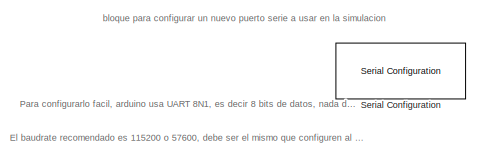
[diagram: root canvas - part 1/2, top left region]
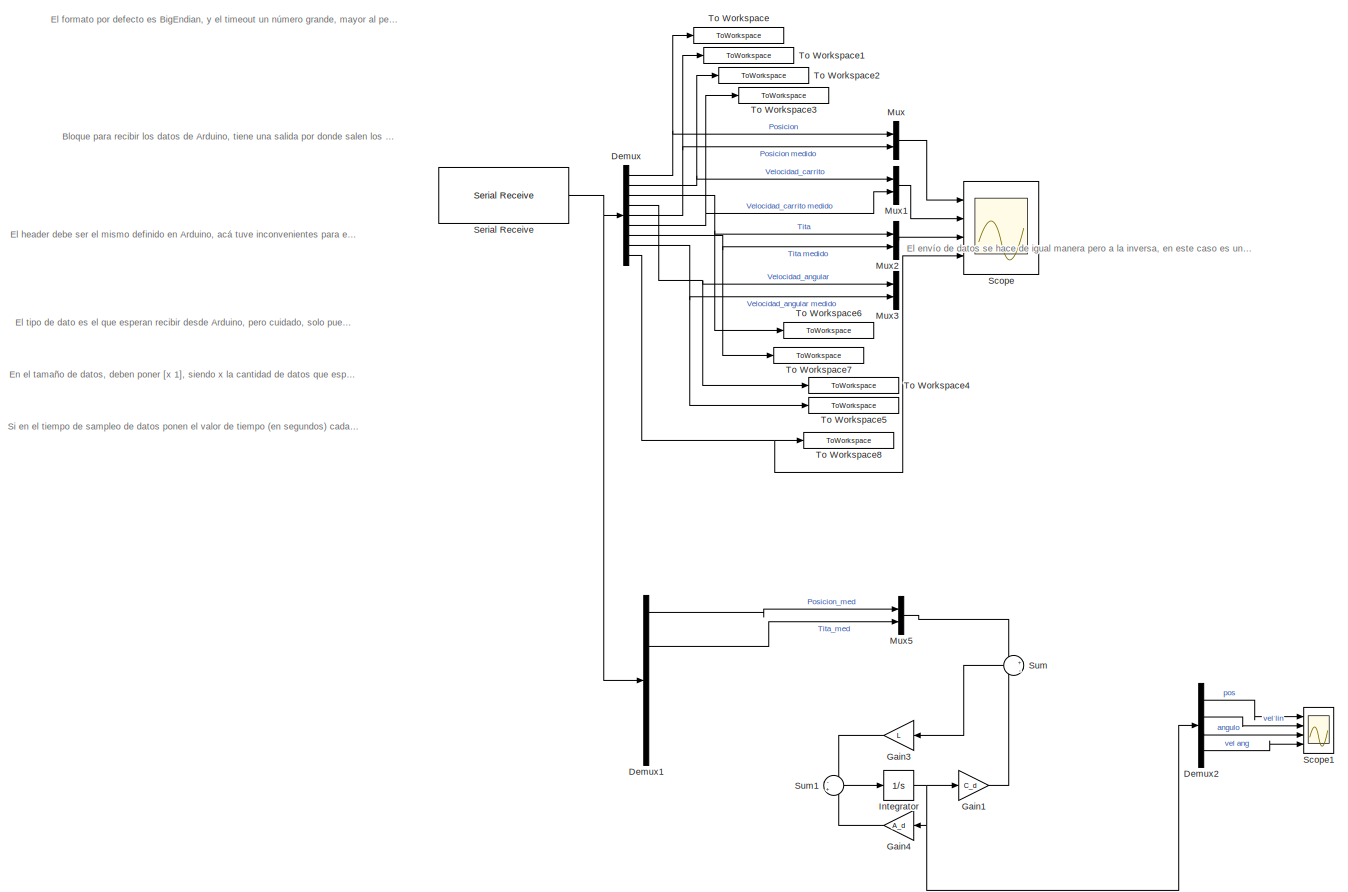
[diagram: root canvas - part 2/2, most of the canvas]
MODEL slx_5d8e3fe70438
KIND model
CONFIG AbsTol = auto
CONFIG EnableMultiTasking = off
CONFIG FixedStep = auto
CONFIG MaxStep = auto
CONFIG MinStep = auto
CONFIG RelTol = 1e-3
CONFIG SampleTimeConstraint = Unconstrained
CONFIG SolverName = VariableStepAuto
CONFIG StartTime = 0.0
CONFIG StopTime = Inf
BLOCK [Demux] Demux
  Outputs = 9
  Ports = [1, 9]
BLOCK [Demux] Demux1
  Outputs = 9
  Ports = [1, 9]
BLOCK [Demux] Demux2
  Ports = [1, 4]
BLOCK [Gain] Gain1
  Gain = C_d
  Multiplication = Matrix(K*u)
BLOCK [Gain] Gain3
  Gain = L
  Multiplication = Matrix(K*u)
  NameLocation = top
BLOCK [Gain] Gain4
  Gain = A_d
  Multiplication = Matrix(K*u)
  NameLocation = top
BLOCK [Integrator] Integrator
  Ports = [1, 1]
BLOCK [Mux] Mux
  DisplayOption = bar
  Inputs = 2
  Ports = [2, 1]
BLOCK [Mux] Mux1
  DisplayOption = bar
  Inputs = 2
  Ports = [2, 1]
BLOCK [Mux] Mux2
  DisplayOption = bar
  Inputs = 2
  Ports = [2, 1]
BLOCK [Mux] Mux3
  DisplayOption = bar
  Inputs = 2
  Ports = [2, 1]
BLOCK [Mux] Mux5
  DisplayOption = bar
  Inputs = 2
  Ports = [2, 1]
BLOCK [Scope] Scope
  Floating = off
  NumInputPorts = 4
  Ports = [4]
  ScopeSpecificationString = Simulink.scopes.TimeScopeBlockCfg('CurrentConfiguration', extmgr.ConfigurationSet(extmgr.Configuration('Core','General UI',true,'FigureColor',[0.8 0.8 0.8]),extmgr.Configuration('Core','Source UI',true),extmgr.Configuration('Sources','WiredSimulink',true),extmgr.Configuration('Visuals','Time Domain',true,'SerializedDisplays',{struct('MinYLimReal','-24.68377','MaxYLimReal','27.03652','YLabelReal','...<+4616ch>
BLOCK [Scope] Scope1
  Floating = off
  NumInputPorts = 4
  Ports = [4]
  ScopeSpecificationString = Simulink.scopes.TimeScopeBlockCfg('CurrentConfiguration', extmgr.ConfigurationSet(extmgr.Configuration('Core','General UI',true),extmgr.Configuration('Core','Source UI',true),extmgr.Configuration('Sources','WiredSimulink',true,'DataLoggingVariableName','ScopeData1'),extmgr.Configuration('Visuals','Time Domain',true,'SerializedDisplays',{struct('MinYLimReal','-3.42632','MaxYLimReal','30.83686','YLa...<+3454ch>
BLOCK [Reference] Serial Configuration  REF=instrumentseriallib/Serial Configuration
  Ports = []
  Priority = -200000
  SourceBlock = instrumentseriallib/Serial Configuration
  SourceProductBaseCode = IC
  SourceType = matlabshared.seriallib.internal.system.SerialConfiguration
BLOCK [Reference] Serial Receive  REF=instrumentseriallib/Serial Receive
  Ports = [0, 1]
  Priority = 1
  SourceBlock = instrumentseriallib/Serial Receive
  SourceProductBaseCode = IC
  SourceType = matlabshared.seriallib.internal.system.SerialReceive
BLOCK [Sum] Sum
  Inputs = +|-
  NameLocation = top
  Ports = [2, 1]
BLOCK [Sum] Sum1
  Inputs = -+
  Ports = [2, 1]
BLOCK [ToWorkspace] To Workspace
  FixptAsFi = on
  MaxDataPoints = inf
  Ports = [1]
  SampleTime = -1
  Save2DSignal = 2-D array (concatenate along first dimension)
  VariableName = pos_ve
BLOCK [ToWorkspace] To Workspace1
  FixptAsFi = on
  MaxDataPoints = inf
  Ports = [1]
  SampleTime = -1
  Save2DSignal = 2-D array (concatenate along first dimension)
  VariableName = pos_med
BLOCK [ToWorkspace] To Workspace2
  FixptAsFi = on
  MaxDataPoints = inf
  Ports = [1]
  SampleTime = -1
  Save2DSignal = 2-D array (concatenate along first dimension)
  VariableName = vel_carro_ve
BLOCK [ToWorkspace] To Workspace3
  FixptAsFi = on
  MaxDataPoints = inf
  Ports = [1]
  SampleTime = -1
  Save2DSignal = 2-D array (concatenate along first dimension)
  VariableName = vel_carro_med
BLOCK [ToWorkspace] To Workspace4
  FixptAsFi = on
  MaxDataPoints = inf
  Ports = [1]
  SampleTime = -1
  Save2DSignal = 2-D array (concatenate along first dimension)
  VariableName = vel_angular_ve
BLOCK [ToWorkspace] To Workspace5
  FixptAsFi = on
  MaxDataPoints = inf
  Ports = [1]
  SampleTime = -1
  Save2DSignal = 2-D array (concatenate along first dimension)
  VariableName = vel_angular_med
BLOCK [ToWorkspace] To Workspace6
  FixptAsFi = on
  MaxDataPoints = inf
  Ports = [1]
  SampleTime = -1
  Save2DSignal = 2-D array (concatenate along first dimension)
  VariableName = tita_ve
BLOCK [ToWorkspace] To Workspace7
  FixptAsFi = on
  MaxDataPoints = inf
  Ports = [1]
  SampleTime = -1
  Save2DSignal = 2-D array (concatenate along first dimension)
  VariableName = tita_med
BLOCK [ToWorkspace] To Workspace8
  FixptAsFi = on
  MaxDataPoints = inf
  Ports = [1]
  SampleTime = -1
  Save2DSignal = 2-D array (concatenate along first dimension)
  VariableName = u
ANNOTATION (root): Bloque para recibir los datos de Arduino, tiene una salida por donde salen los datos
ANNOTATION (root): El baudrate recomendado es 115200 o 57600, debe ser el mismo que configuren al setear el puerto serie en Arduino
ANNOTATION (root): El envío de datos se hace de igual manera pero a la inversa, en este caso es un ejemplo simple para mandar un único byte de datos al arduino
ANNOTATION (root): El formato por defecto es BigEndian, y el timeout un número grande, mayor al período con el cual envian datos
ANNOTATION (root): El header debe ser el mismo definido en Arduino, acá tuve inconvenientes para especificarlo en formato string, así que utilizo el código decimal de los caracteres que mando desde Arduino. Como mando los caracteres "abcd" como header, en este bloque indico que voy a recibir [97 98 99 100], que son los códigos decimales ASCII de esas letras. Se debe poder especificar cualquier header binario, probab...<+41ch>
ANNOTATION (root): El tipo de dato es el que esperan recibir desde Arduino, pero cuidado, solo pueden elegir un tipo de dato. Matlab espera recibir o todos floats, o todos enteros de 16 bits, etc. Single es el float, double es el double, el resto son intuitivos.
ANNOTATION (root): En el tamaño de datos, deben poner [x 1], siendo x la cantidad de datos que esperan recibir. Como el codigo de arduino de ejemplo manda 3 datos tipo float, esta configurado como [3 1]
ANNOTATION (root): Para configurarlo facil, arduino usa UART 8N1, es decir 8 bits de datos, nada de paridad, y un bit de stop
ANNOTATION (root): Si en el tiempo de sampleo de datos ponen el valor de tiempo (en segundos) cada el cual envían datos desde arduino, entonces el tiempo de la simulacion va a corresponder con el tiempo de ejecución en arduino. En este caso, el tiempo de 0.02 significa que estoy mandando los 3 floats cada 20 milisegundos desde arduino
ANNOTATION (root): bloque para configurar un nuevo puerto serie a usar en la simulacion
LINE Demux1:1 -> Mux5:1
LINE Demux1:3 -> Mux5:2
LINE Demux2:1 -> Scope1:1
LINE Demux2:2 -> Scope1:2
LINE Demux2:3 -> Scope1:3
LINE Demux2:4 -> Scope1:4
NET Demux:1 -> Mux:1, To Workspace:1
NET Demux:2 -> Mux1:1, To Workspace2:1
NET Demux:3 -> Mux2:1, To Workspace6:1
NET Demux:4 -> Mux3:1, To Workspace4:1
NET Demux:5 -> Mux:2, To Workspace1:1
NET Demux:6 -> Mux1:2, To Workspace3:1
NET Demux:7 -> Mux2:2, To Workspace7:1
NET Demux:8 -> Mux3:2, To Workspace5:1
NET Demux:9 -> Scope:4, To Workspace8:1
LINE Gain1:1 -> Sum:2
LINE Gain3:1 -> Sum1:1
LINE Gain4:1 -> Sum1:2
NET Integrator:1 -> Demux2:1, Gain1:1, Gain4:1
LINE Mux1:1 -> Scope:2
LINE Mux2:1 -> Scope:3
LINE Mux5:1 -> Sum:1
LINE Mux:1 -> Scope:1
NET Serial Receive:1 -> Demux1:1, Demux:1
LINE Sum1:1 -> Integrator:1
LINE Sum:1 -> Gain3:1
note: NET lines group one-source signal fan-out (src -> all destinations, sorted); 1:1 wires keep LINE
